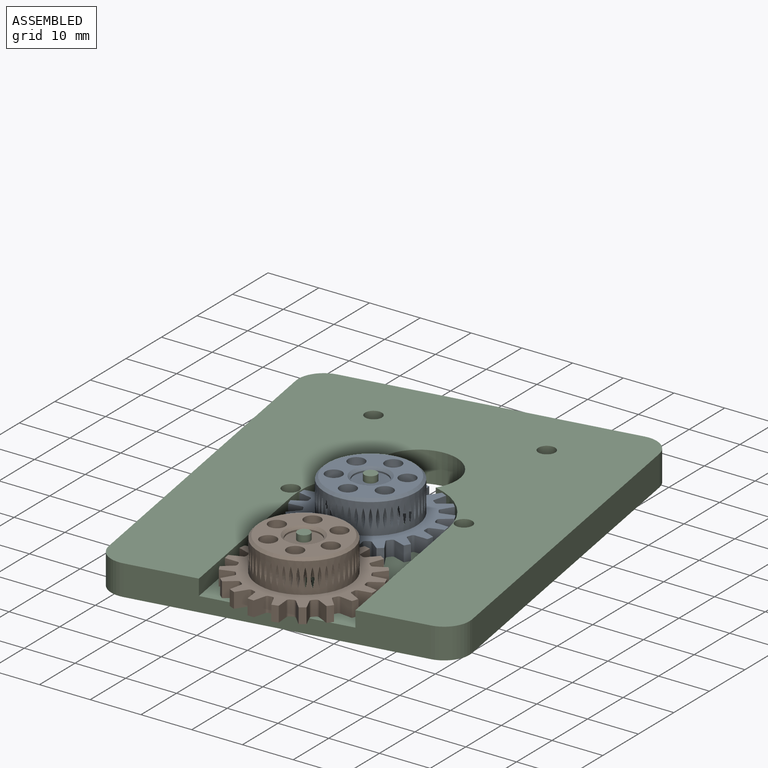
[diagram: assembled view]
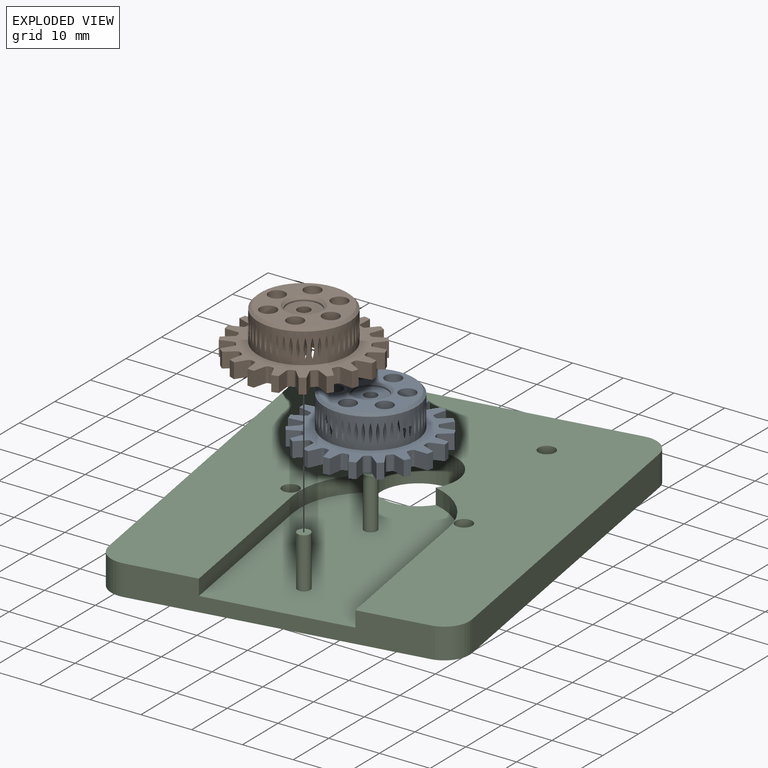
[diagram: exploded view]
GUIDED TOUR — MATED ASSEMBLY (Onshape document 01b42a05646bdab1775c9bc0, AutoMate assembly 01b42a05646bdab1775c9bc0_04e53cfaf730efeced5938af_a983b34cb6a86c71ded36228_default)

This assembly has 3 components, labeled P0..P2 below (a component is one placed occurrence of a part; the same part can appear more than once), held together by 2 mates. A mate is a constraint between two components; its type names the relative motion it leaves free:
  REVOLUTE — leaves rotation about the listed axis free (a hinge).
Axis/direction vectors are unit vectors and 'through' points are millimeter coordinates, both in the assembly's world frame.

MATES
  1. REVOLUTE "Revolute 1": P0 <-> P2, axis (0.000, 0.000, -1.000) through (5.46, -8.87, -0.22) mm
  2. REVOLUTE "Revolute 2": P1 <-> P2, axis (0.000, 0.000, -1.000) through (9.57, -33.53, -0.22) mm

ASSEMBLY ORDER
  1. P2 — the base component [order heuristic]
  2. P0 [order heuristic]
  3. P1 [order heuristic]
Order-tag legend:
  [order heuristic] — this assembly is geometrically interlocked (no collision-free removal order exists), so components are listed in mate-graph order; insertion feasibility is not verified.

Of the 3 components, 1 carries the full construction recipe — the FeatureScript program that regenerates the part's solid from scratch; the rest are supplied as boundary geometry only.
Each toured component is shown spotlighted twice — in the assembled view, then in the exploded view, where a leader line traces a displaced component back to its assembled socket (saturated green if recipe-attached, orange if geometry-only; every other component desaturated gray) — followed by its recipe or geometry summary and the mates that hold it.
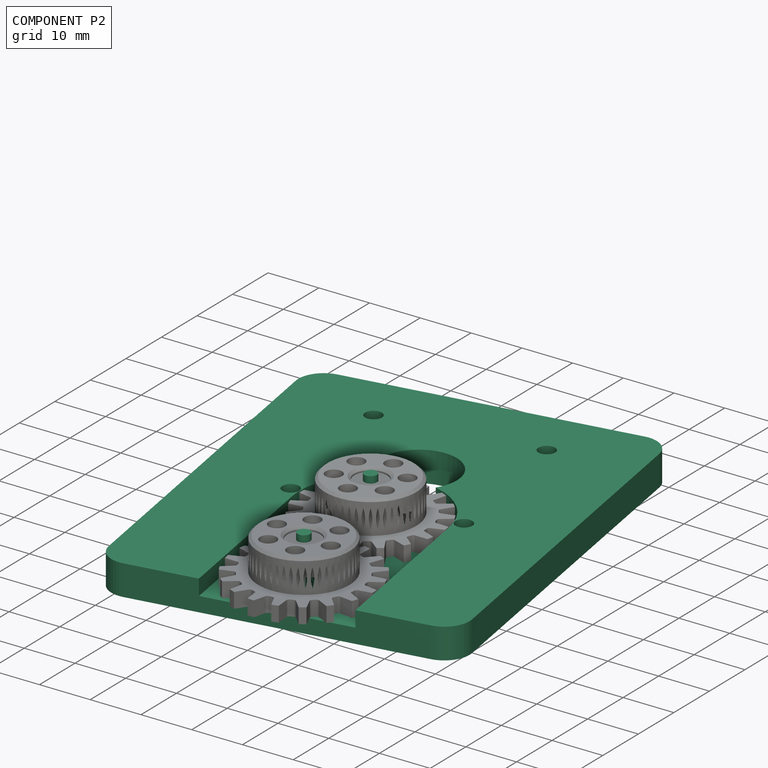
[diagram: component P2 — assembled]
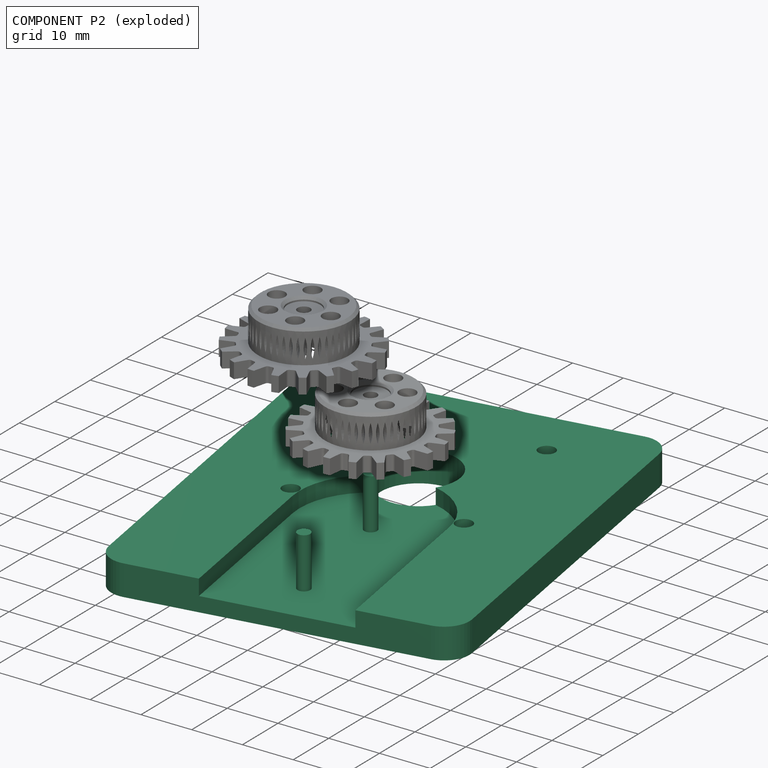
[diagram: component P2 — exploded]
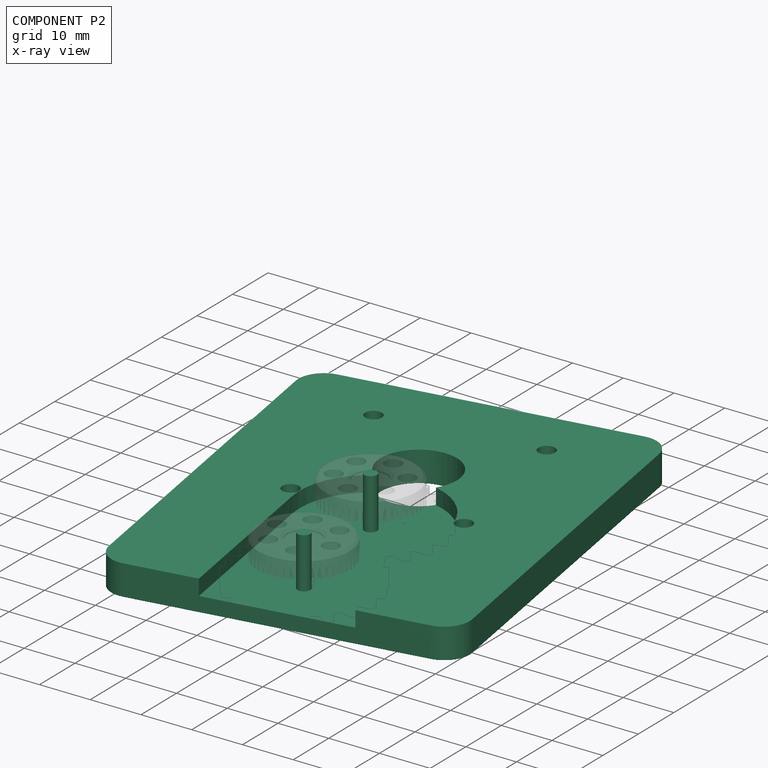
[diagram: component P2 — x-ray view]
COMPONENT P2 — recipe-attached (CADFS 00812924, mesh-verified: the recipe's output STEP matches this component's geometry to below the mesh-comparison resolution (tessellation chordal tolerance ~0.156 mm)).
Held by: REVOLUTE mate "Revolute 1" to P0; REVOLUTE mate "Revolute 2" to P1.
Construction recipe (FeatureScript — the CAD program that rebuilds this solid; sketch coordinates are in the units given by the * unit suffixes, e.g. mm):

FeatureScript 1758;
import(path : "onshape/std/geometry.fs", version : "1758.0");
import(path : "onshape/std/common.fs", version : "1758.0");
const mm = millimeter;
const VERTEX = EntityType.VERTEX;
const EDGE = EntityType.EDGE;
const FACE = EntityType.FACE;
const BODY = EntityType.BODY;
function v(x, y){return vector(x, y);}
function OD(order){return orderDisambiguation(order);}
function OSD(set){return originalSetDisambiguation(set);}
function TD(topology){return topologyDisambiguation(topology);}
function TDD(query){return trueDependencyDisambiguation(query);}
function sQuery(a, b, c) {return sketchEntityQuery(a, b, c);}

annotation { "Feature Type Name" : "Feature", "Feature Type Description" : "" }
export const myFeature = defineFeature(function(context is Context, id is Id, definition is map)
    precondition{}
    {
        {
            var Q0;
            Q0=qCreatedBy(makeId("Top.planeOp"),FACE);
            var sketch = newSketch(context, id + "F0", { "sketchPlane" : qUnion([Q0])});
            skLineSegment(sketch, "E0.bottom", {"start": v(32.5, -40) * mm, "end": v(-32.5, -40) * mm});
            skLineSegment(sketch, "E0.top", {"start": v(32.5, 40) * mm, "end": v(-32.5, 40) * mm});
            skLineSegment(sketch, "E0.left", {"start": v(32.5, -40) * mm, "end": v(32.5, 40) * mm});
            skLineSegment(sketch, "E0.right", {"start": v(-32.5, -40) * mm, "end": v(-32.5, 40) * mm});
            skPoint(sketch, "E0.middle", {"position": v(0, 0) * mm});
            skLineSegment(sketch, "E1", {"start": v(0, 40) * mm, "end": v(0, -40) * mm, "construction": true});
            skSolve(sketch);
        }
        {
            var Q0;
            Q0=makeQuery(id+"F0.imprint","IMPRINT",FACE,{"disambiguationData":[TD([[makeQuery(id+"F0.imprint","IMPRINT",EDGE,{"derivedFrom":sQuery(id+"F0.wireOp",EDGE,"E0.bottom")}),-1.0]])]});
            extrude(context, id + "F1", {"entities" : qUnion([Q0]), "depth" : 6 * mm, "offsetDistance" : 25 * mm});
        }
        {
            var Q0;
            Q0=makeQuery(id+"F1.opExtrude","SWEPT_EDGE",EDGE,{"disambiguationData":[OSD([sQuery(id+"F0.wireOp",EDGE,"E0.bottom"),sQuery(id+"F0.wireOp",EDGE,"E0.left")])]});
            var Q1;
            Q1=makeQuery(id+"F1.opExtrude","SWEPT_EDGE",EDGE,{"disambiguationData":[OSD([sQuery(id+"F0.wireOp",EDGE,"E0.top"),sQuery(id+"F0.wireOp",EDGE,"E0.left")])]});
            var Q2;
            Q2=makeQuery(id+"F1.opExtrude","SWEPT_EDGE",EDGE,{"disambiguationData":[OSD([sQuery(id+"F0.wireOp",EDGE,"E0.top"),sQuery(id+"F0.wireOp",EDGE,"E0.right")])]});
            var Q3;
            Q3=makeQuery(id+"F1.opExtrude","SWEPT_EDGE",EDGE,{"disambiguationData":[OSD([sQuery(id+"F0.wireOp",EDGE,"E0.bottom"),sQuery(id+"F0.wireOp",EDGE,"E0.right")])]});
            fillet(context, id + "F2", {"entities" : qUnion([Q0, Q1, Q2, Q3]), "radius" : 5 * mm, "tangentPropagation" : true, "allowEdgeOverflow" : false});
        }
        {
            var Q0;
            Q0=makeQuery(id+"F1.opExtrude","CAP_FACE",FACE,{"disambiguationData":[OSD([sQuery(id+"F0.wireOp",EDGE,"E0.bottom"),sQuery(id+"F0.wireOp",EDGE,"E0.top"),sQuery(id+"F0.wireOp",EDGE,"E0.left"),sQuery(id+"F0.wireOp",EDGE,"E0.right")])],"isStart":false});
            var sketch = newSketch(context, id + "F3", { "sketchPlane" : qUnion([Q0])});
            skArc(sketch, "E2", {"start": v(14, -5) * mm, "mid": v(0, 9) * mm, "end": v(-14, -5) * mm});
            skLineSegment(sketch, "E3", {"start": v(-14, -5) * mm, "end": v(-14, -40) * mm});
            skLineSegment(sketch, "E4", {"start": v(14, -5) * mm, "end": v(14, -40) * mm});
            skLineSegment(sketch, "E5", {"start": v(-14, -40) * mm, "end": v(14, -40) * mm});
            skSolve(sketch);
        }
        {
            var Q0;
            Q0 = qSketchRegion(id + "F3", true);
            extrude(context, id + "F4", {"entities" : qUnion([Q0]), "operationType" : NewBodyOperationType.REMOVE, "oppositeDirection" : true, "depth" : 3.1 * mm, "offsetDistance" : 25 * mm});
        }
        {
            var Q0;
            Q0=makeQuery(id+"F4.boolean.opBoolean","COPY",FACE,{"derivedFrom":makeQuery(id+"F4.opExtrude","CAP_FACE",FACE,{"disambiguationData":[OSD([sQuery(id+"F3.wireOp",EDGE,"E2"),sQuery(id+"F3.wireOp",EDGE,"E3"),sQuery(id+"F3.wireOp",EDGE,"E4"),sQuery(id+"F3.wireOp",EDGE,"E5")])],"isStart":false})});
            var sketch = newSketch(context, id + "F5", { "sketchPlane" : qUnion([Q0])});
            skLineSegment(sketch, "E6", {"start": v(0, -40) * mm, "end": v(0, 9) * mm, "construction": true});
            skCircle(sketch, "E7", {"center": v(0, -5) * mm, "radius": 1.25 * mm});
            skCircle(sketch, "E8", {"center": v(0, -30) * mm, "radius": 1.25 * mm});
            skSolve(sketch);
        }
        {
            var Q0;
            Q0 = qSketchRegion(id + "F5", true);
            extrude(context, id + "F6", {"entities" : qUnion([Q0]), "operationType" : NewBodyOperationType.ADD, "depth" : 10 * mm, "offsetDistance" : 25 * mm});
        }
        {
            var Q0;
            Q0=makeQuery(id+"F1.opExtrude","CAP_FACE",FACE,{"disambiguationData":[OSD([sQuery(id+"F0.wireOp",EDGE,"E0.bottom"),sQuery(id+"F0.wireOp",EDGE,"E0.top"),sQuery(id+"F0.wireOp",EDGE,"E0.left"),sQuery(id+"F0.wireOp",EDGE,"E0.right")])],"isStart":true});
            var sketch = newSketch(context, id + "F7", { "sketchPlane" : qUnion([Q0])});
            skLineSegment(sketch, "E9", {"start": v(0, 40) * mm, "end": v(0, -40) * mm, "construction": true});
            skPoint(sketch, "E10", {"position": v(-15.5, 2.5) * mm});
            skPoint(sketch, "E11", {"position": v(15.5, 2.5) * mm});
            skPoint(sketch, "E12", {"position": v(-15.5, -28.5) * mm});
            skPoint(sketch, "E13", {"position": v(15.5, -28.5) * mm});
            skCircle(sketch, "E14", {"center": v(0, -13) * mm, "radius": 7.25 * mm, "construction": true});
            skCircle(sketch, "E15.0", {"center": v(0, 5) * mm, "radius": 1.25 * mm, "construction": true});
            skSolve(sketch);
        }
        {
            var Q0;
            Q0=sQuery(id+"F7.wireOp",VERTEX,"E14.center");
            var Q1;
            Q1=makeQuery(id+"F1.opExtrude","SWEPT_BODY",BODY,{"disambiguationData":[OSD([sQuery(id+"F0.wireOp",EDGE,"E0.bottom"),sQuery(id+"F0.wireOp",EDGE,"E0.top"),sQuery(id+"F0.wireOp",EDGE,"E0.left"),sQuery(id+"F0.wireOp",EDGE,"E0.right")])]});
            hole(context, id + "F8", {"style" : HoleStyle.SIMPLE, "endStyle" : HoleEndStyle.THROUGH, "holeDiameter" : 15 * mm, "majorDiameter" : 5 * mm, "isTappedThrough" : true, "tappedDepth" : 12 * mm, "tapClearance" : 3, "locations" : qUnion([Q0]), "scope" : qUnion([Q1])});
        }
        {
            var Q0;
            Q0=sQuery(id+"F7.wireOp",VERTEX,"E13");
            var Q1;
            Q1=sQuery(id+"F7.wireOp",VERTEX,"E11");
            var Q2;
            Q2=sQuery(id+"F7.wireOp",VERTEX,"E10");
            var Q3;
            Q3=sQuery(id+"F7.wireOp",VERTEX,"E12");
            var Q4;
            Q4=makeQuery(id+"F1.opExtrude","SWEPT_BODY",BODY,{"disambiguationData":[OSD([sQuery(id+"F0.wireOp",EDGE,"E0.bottom"),sQuery(id+"F0.wireOp",EDGE,"E0.top"),sQuery(id+"F0.wireOp",EDGE,"E0.left"),sQuery(id+"F0.wireOp",EDGE,"E0.right")])]});
            hole(context, id + "F9", {"style" : HoleStyle.SIMPLE, "endStyle" : HoleEndStyle.THROUGH, "standardTappedOrClearance" : lookupTablePath({ "standard" : "ISO", "fit" : "Normal", "size" : "M3", "type" : "Clearance" }), "standardBlindInLast" : lookupTablePath({ "fit" : "Standard", "standard" : "ISO", "size" : "M3", "type" : "Clearance" }), "holeDiameter" : 3.3 * mm, "majorDiameter" : 5 * mm, "isTappedThrough" : true, "tappedDepth" : 12 * mm, "tapClearance" : 3, "locations" : qUnion([Q0, Q1, Q2, Q3]), "scope" : qUnion([Q4])});
        }
    });
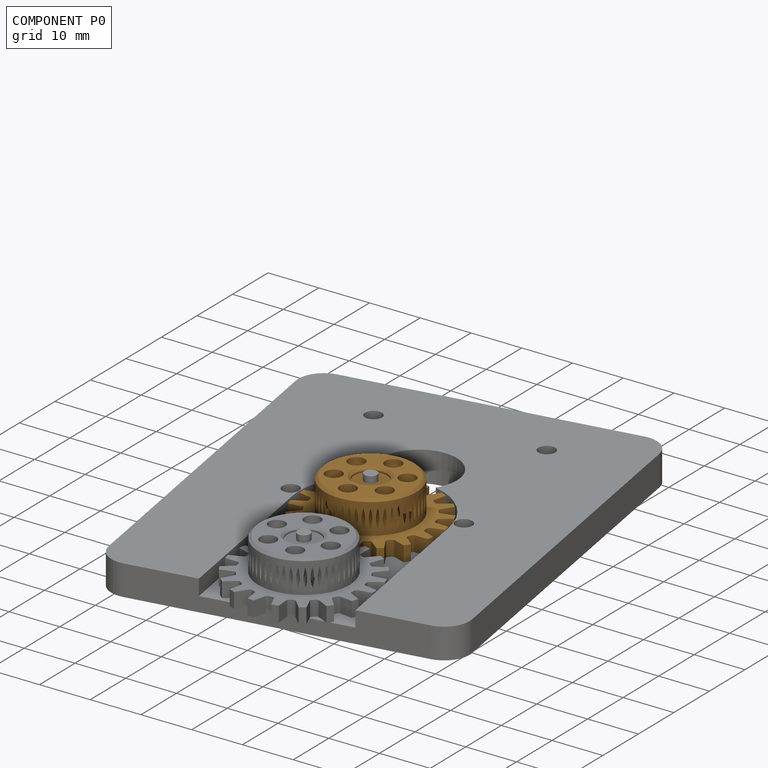
[diagram: component P0 — assembled]
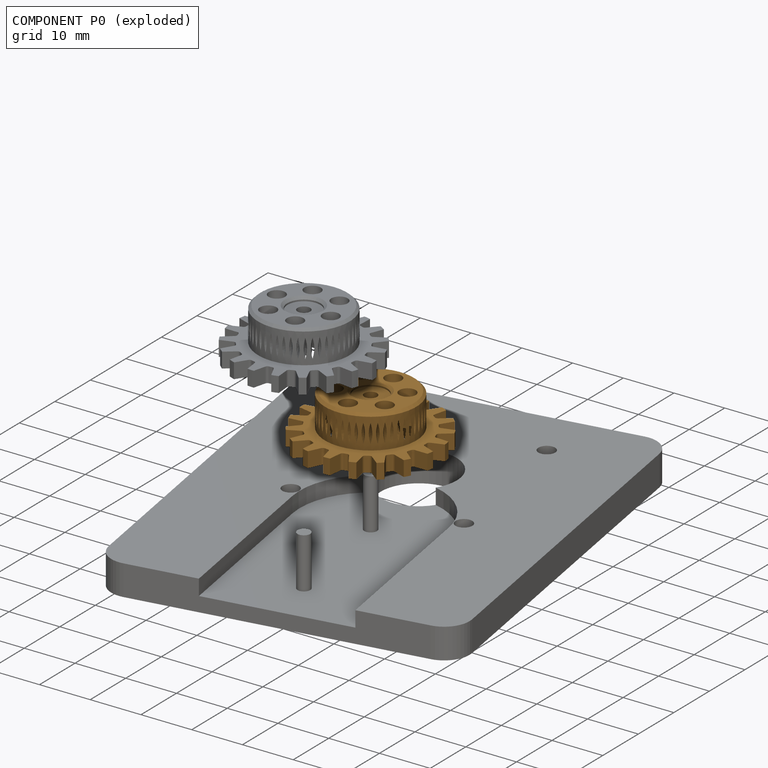
[diagram: component P0 — exploded]
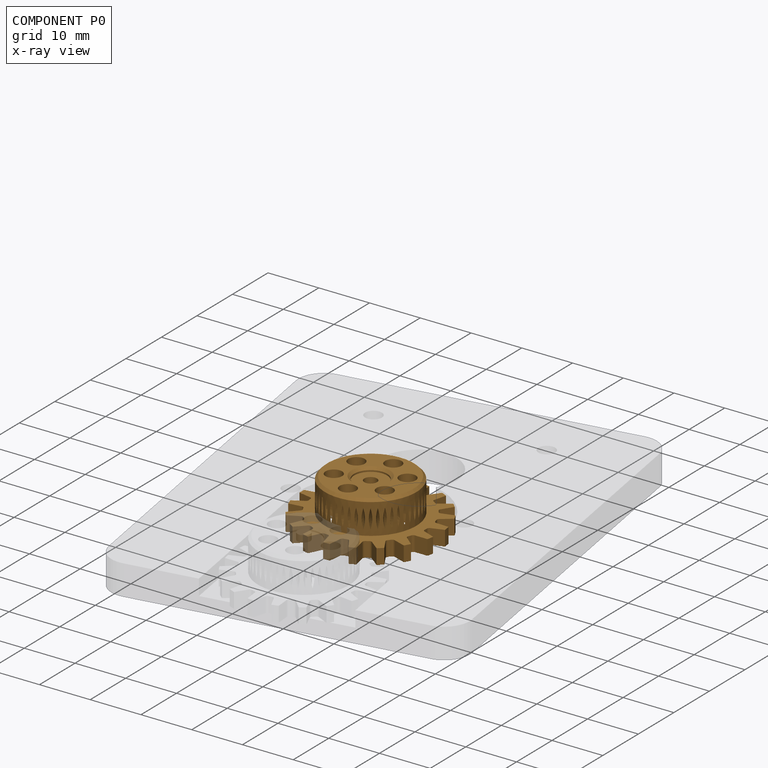
[diagram: component P0 — x-ray view]
COMPONENT P0 — geometry summary (no construction recipe available for this part):
  bounding box: 27.5 x 27.4 x 9.6 mm
  B-rep topology: 1 solid, 231 faces, 1058 edges
  volume: 2163 mm^3 (30% of its bounding box)
  symmetry: mirror-symmetric across its x mid-plane
Held by: REVOLUTE mate "Revolute 1" to P2.
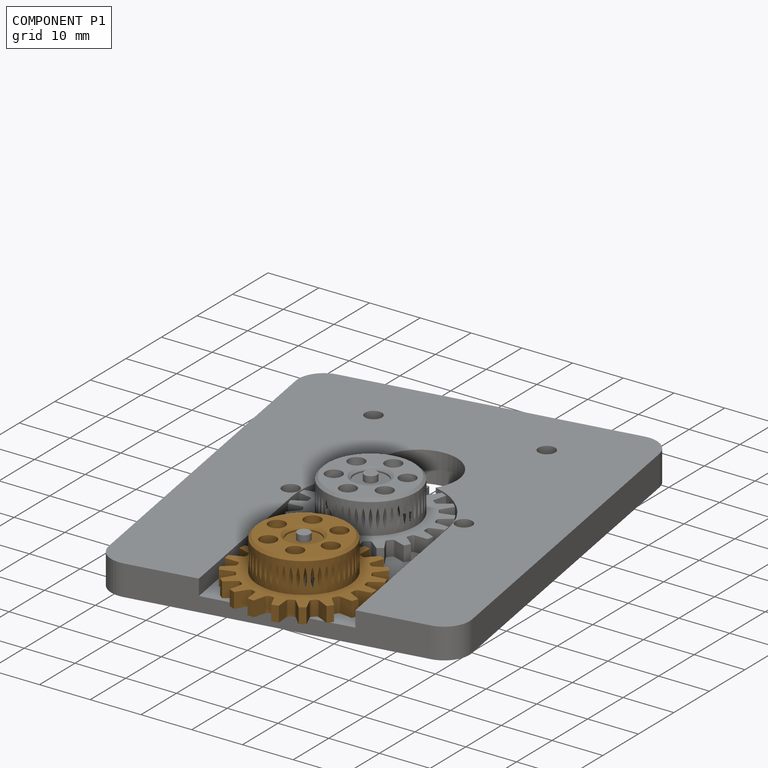
[diagram: component P1 — assembled]
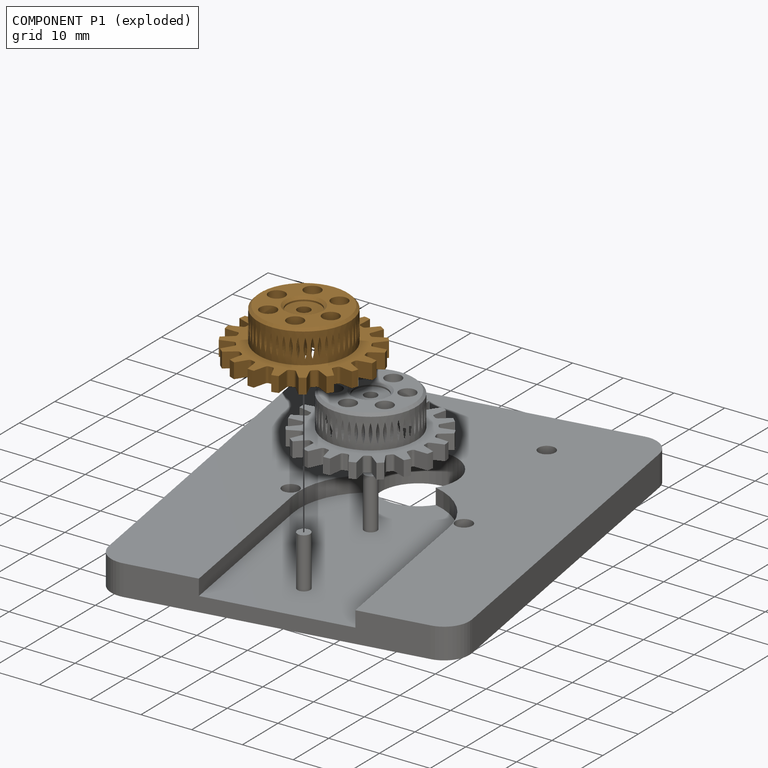
[diagram: component P1 — exploded]
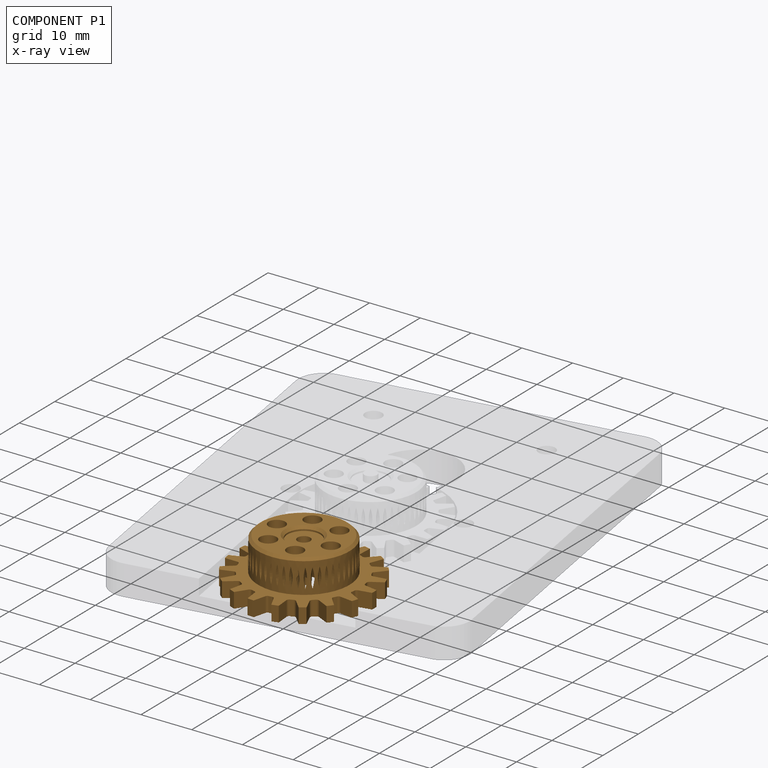
[diagram: component P1 — x-ray view]
COMPONENT P1 — geometry summary (no construction recipe available for this part):
  bounding box: 27.5 x 27.4 x 9.6 mm
  B-rep topology: 1 solid, 231 faces, 1058 edges
  volume: 2163 mm^3 (30% of its bounding box)
  symmetry: mirror-symmetric across its x mid-plane
Held by: REVOLUTE mate "Revolute 2" to P2.
PROVENANCE & LICENSES
Assembly (occurrences, transforms, mates, per-part STEP geometry): AutoMate dataset, Zenodo record 7776208, CC0.
Construction recipes: CADFS (HuggingFace VladPyatov/CADFS, CC-BY-4.0, layered over the ABC dataset), FeatureScript reconstruction programs keyed by ABC model id.
Join: ABC meta listings map ABC model id -> Onshape documentId; within a shared document, parts are matched by geometric signature (bounding-box dims + volume at 0.1% relative tolerance, exact B-rep face/solid counts).
Verification: 1 of this assembly's 3 components carries a recipe attachment, and every attachment is mesh-verified: the CADFS STEP and the AutoMate member STEP were compared as meshes in their shared local frame (symmetric sampled-point-to-mesh distance); worst across the 1 attachment: below the mesh-comparison resolution (tessellation chordal tolerance ~0.156 mm) on a 104 mm part.
Renders: orthographic iso camera (az 35 / el 25); the floor grid conveys scale (grid pitch printed in each image; no ruler). In the exploded view each component is displaced by its stored offset vector: the offsets alone carry the explosion direction (mate normal/axis signs are not orientation cues and do not encode it), and separation distances are assigned per mate-chain, not proportionally to assembly-order depth.
